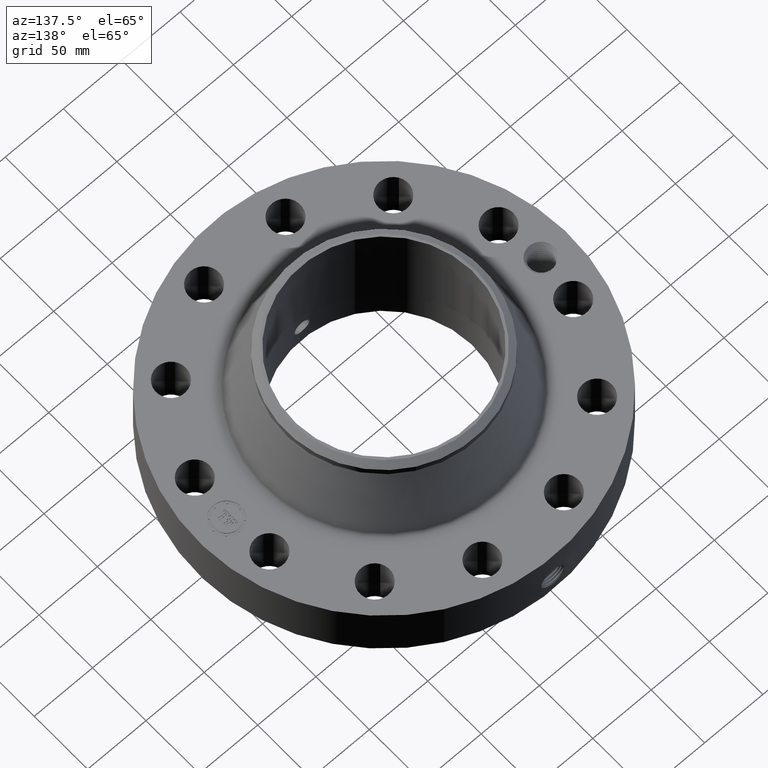
[diagram: clean part render]
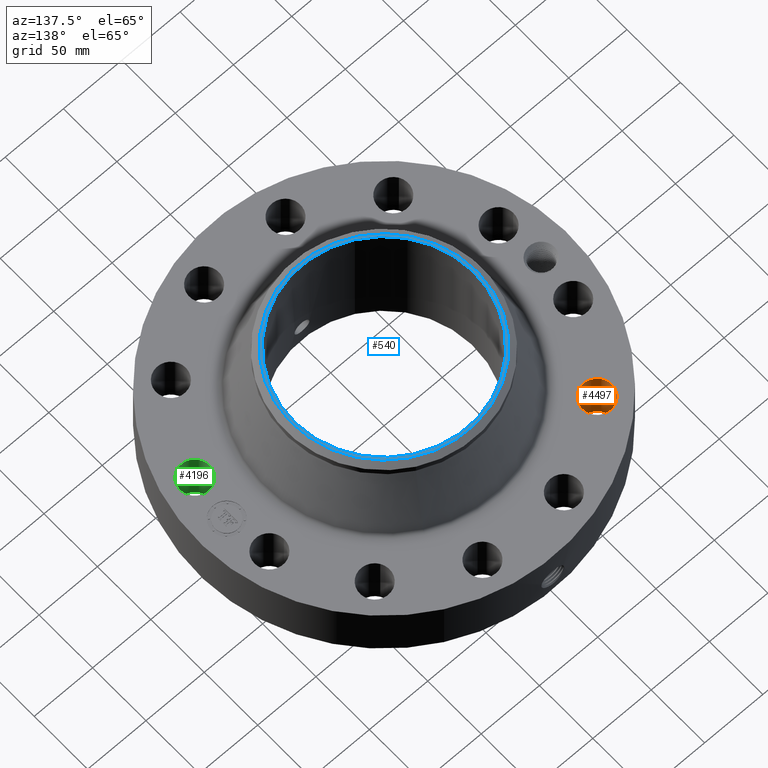
[diagram: same view with three faces highlighted in distinct colors, each labeled with its STEP entity id]
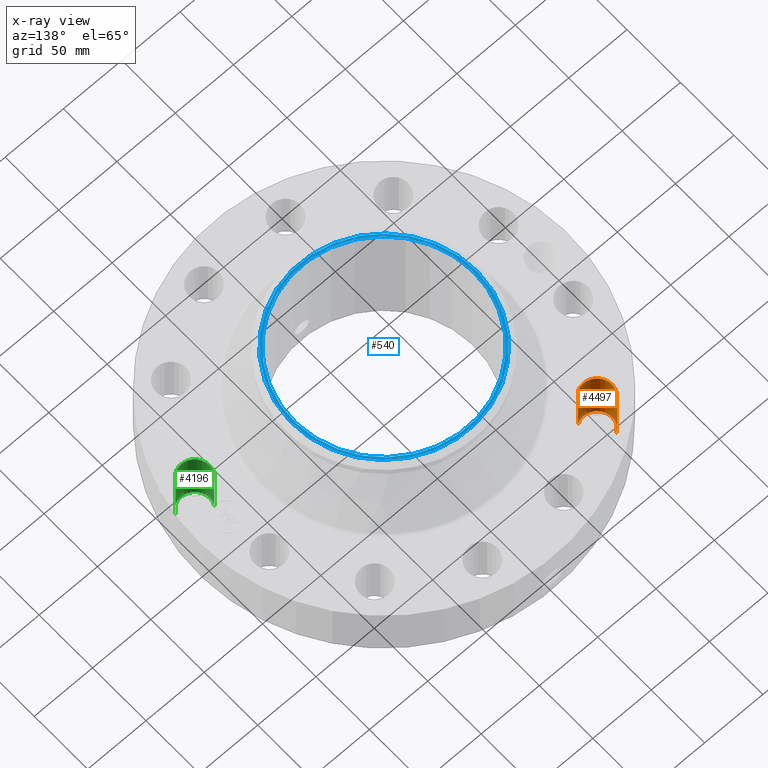
[diagram: x-ray of the same camera — body ghosted, the three highlighted faces saturated]
A machine part, auxiliary view with three faces highlighted in distinct colors.
The next image is the same camera in x-ray (body ghosted, the three faces saturated) — at least one of them is partly hidden behind the body in this view.
Their STEP definitions:

[orange] entity #4497 — the highlighted cylindrical surface (edge-blend (fillet) strip) has radius 12.7 mm, axis along (0, 0, -1).
#3093=AXIS2_PLACEMENT_3D('Circle Axis2P3D',#3091,#3092,$) ;
#4470=AXIS2_PLACEMENT_3D('Cylinder Axis2P3D',#4467,#4468,#4469) ;
#4481=AXIS2_PLACEMENT_3D('Circle Axis2P3D',#4479,#4480,$) ;
#3086=CARTESIAN_POINT('Vertex',(-4.01488501972,4.18172999642,1.93200000001)) ;
#3088=CARTESIAN_POINT('Vertex',(-3.49458899651,3.32774401981,1.93200000001)) ;
#3091=CARTESIAN_POINT('Axis2P3D Location',(-3.75473700812,3.75473700812,1.93200000001)) ;
#4467=CARTESIAN_POINT('Axis2P3D Location',(-3.75473700812,3.75473700812,1.92806299213)) ;
#4472=CARTESIAN_POINT('Line Origine',(-3.49458899651,3.32774401981,0.966000000004)) ;
#4476=CARTESIAN_POINT('Vertex',(-3.49458899651,3.32774401981,0.)) ;
#4479=CARTESIAN_POINT('Axis2P3D Location',(-3.75473700812,3.75473700812,0.)) ;
#4483=CARTESIAN_POINT('Vertex',(-4.01488501972,4.18172999642,0.)) ;
#4486=CARTESIAN_POINT('Line Origine',(-4.01488501972,4.18172999642,0.966000000004)) ;
#3092=DIRECTION('Axis2P3D Direction',(0.,0.,-0.0393700787402)) ;
#4468=DIRECTION('Axis2P3D Direction',(0.,0.,-0.0393700787402)) ;
#4469=DIRECTION('Axis2P3D XDirection',(-0.0204840954021,0.0336214951417,0.)) ;
#4473=DIRECTION('Vector Direction',(0.,0.,-0.0393700787402)) ;
#4480=DIRECTION('Axis2P3D Direction',(0.,0.,-0.0393700787402)) ;
#4487=DIRECTION('Vector Direction',(0.,0.,-0.0393700787402)) ;
#4474=VECTOR('Line Direction',#4473,0.0393700787402) ;
#4488=VECTOR('Line Direction',#4487,0.0393700787402) ;
#4492=ORIENTED_EDGE('',*,*,#4478,.F.) ;
#4493=ORIENTED_EDGE('',*,*,#4485,.T.) ;
#4494=ORIENTED_EDGE('',*,*,#4490,.T.) ;
#4495=ORIENTED_EDGE('',*,*,#3095,.F.) ;
#4497=ADVANCED_FACE('PartBody',(#4496),#4471,.F.) ;
#3094=CIRCLE('generated circle',#3093,0.500000000002) ;
#4482=CIRCLE('generated circle',#4481,0.500000000002) ;
#4471=CYLINDRICAL_SURFACE('generated cylinder',#4470,0.500000000002) ;
#3095=EDGE_CURVE('',#3089,#3087,#3094,.T.) ;
#4478=EDGE_CURVE('',#4477,#3089,#4475,.F.) ;
#4485=EDGE_CURVE('',#4477,#4484,#4482,.T.) ;
#4490=EDGE_CURVE('',#4484,#3087,#4489,.F.) ;
#4491=EDGE_LOOP('',(#4492,#4493,#4494,#4495)) ;
#4496=FACE_OUTER_BOUND('',#4491,.T.) ;
#4475=LINE('Line',#4472,#4474) ;
#4489=LINE('Line',#4486,#4488) ;
#3087=VERTEX_POINT('',#3086) ;
#3089=VERTEX_POINT('',#3088) ;
#4477=VERTEX_POINT('',#4476) ;
#4484=VERTEX_POINT('',#4483) ;

[blue] entity #540 — the highlighted planar face has unit normal (0, 0, -1).
#236=AXIS2_PLACEMENT_3D('Circle Axis2P3D',#234,#235,$) ;
#511=AXIS2_PLACEMENT_3D('Plane Axis2P3D',#508,#509,#510) ;
#515=AXIS2_PLACEMENT_3D('Circle Axis2P3D',#513,#514,$) ;
#524=AXIS2_PLACEMENT_3D('Circle Axis2P3D',#522,#523,$) ;
#533=AXIS2_PLACEMENT_3D('Circle Axis2P3D',#531,#532,$) ;
#234=CARTESIAN_POINT('Axis2P3D Location',(0.,0.,4.37200000002)) ;
#238=CARTESIAN_POINT('Vertex',(1.45385794582,2.66126911894,4.37200000002)) ;
#240=CARTESIAN_POINT('Vertex',(-1.45385794582,-2.66126911894,4.37200000002)) ;
#508=CARTESIAN_POINT('Axis2P3D Location',(0.,3.31500000001,4.37200000002)) ;
#513=CARTESIAN_POINT('Axis2P3D Location',(0.,0.,4.37200000002)) ;
#517=CARTESIAN_POINT('Vertex',(1.49160798823,-2.73037010807,4.37200000002)) ;
#519=CARTESIAN_POINT('Vertex',(-1.49160798823,2.73037010807,4.37200000002)) ;
#522=CARTESIAN_POINT('Axis2P3D Location',(0.,0.,4.37200000002)) ;
#531=CARTESIAN_POINT('Axis2P3D Location',(0.,0.,4.37200000002)) ;
#235=DIRECTION('Axis2P3D Direction',(0.,0.,-0.0393700787402)) ;
#509=DIRECTION('Axis2P3D Direction',(0.,0.,-0.0393700787402)) ;
#510=DIRECTION('Axis2P3D XDirection',(0.0393700787402,0.,0.)) ;
#514=DIRECTION('Axis2P3D Direction',(0.,0.,-0.0393700787402)) ;
#523=DIRECTION('Axis2P3D Direction',(0.,0.,-0.0393700787402)) ;
#532=DIRECTION('Axis2P3D Direction',(0.,0.,-0.0393700787402)) ;
#528=ORIENTED_EDGE('',*,*,#521,.T.) ;
#529=ORIENTED_EDGE('',*,*,#526,.T.) ;
#537=ORIENTED_EDGE('',*,*,#535,.T.) ;
#538=ORIENTED_EDGE('',*,*,#242,.T.) ;
#539=FACE_BOUND('',#536,.T.) ;
#540=ADVANCED_FACE('PartBody',(#530,#539),#512,.F.) ;
#237=CIRCLE('generated circle',#236,3.03250000001) ;
#516=CIRCLE('generated circle',#515,3.11124015749) ;
#525=CIRCLE('generated circle',#524,3.11124015749) ;
#534=CIRCLE('generated circle',#533,3.03250000001) ;
#242=EDGE_CURVE('',#239,#241,#237,.T.) ;
#521=EDGE_CURVE('',#518,#520,#516,.F.) ;
#526=EDGE_CURVE('',#520,#518,#525,.F.) ;
#535=EDGE_CURVE('',#241,#239,#534,.T.) ;
#527=EDGE_LOOP('',(#528,#529)) ;
#536=EDGE_LOOP('',(#537,#538)) ;
#530=FACE_OUTER_BOUND('',#527,.T.) ;
#512=PLANE('',#511) ;
#239=VERTEX_POINT('',#238) ;
#241=VERTEX_POINT('',#240) ;
#518=VERTEX_POINT('',#517) ;
#520=VERTEX_POINT('',#519) ;

[green] entity #4196 — the highlighted cylindrical surface (edge-blend (fillet) strip) has radius 12.7 mm, axis along (0, -0, -1).
#2963=AXIS2_PLACEMENT_3D('Circle Axis2P3D',#2961,#2962,$) ;
#4169=AXIS2_PLACEMENT_3D('Cylinder Axis2P3D',#4166,#4167,#4168) ;
#4180=AXIS2_PLACEMENT_3D('Circle Axis2P3D',#4178,#4179,$) ;
#2956=CARTESIAN_POINT('Vertex',(4.69027485667,-1.1346163602,1.93200000001)) ;
#2958=CARTESIAN_POINT('Vertex',(5.56785741856,-1.6140418988,1.93200000001)) ;
#2961=CARTESIAN_POINT('Axis2P3D Location',(5.12906613762,-1.3743291295,1.93200000001)) ;
#4166=CARTESIAN_POINT('Axis2P3D Location',(5.12906613762,-1.3743291295,1.92806299213)) ;
#4171=CARTESIAN_POINT('Line Origine',(5.56785741856,-1.6140418988,0.966000000004)) ;
#4175=CARTESIAN_POINT('Vertex',(5.56785741856,-1.6140418988,0.)) ;
#4178=CARTESIAN_POINT('Axis2P3D Location',(5.12906613762,-1.3743291295,0.)) ;
#4182=CARTESIAN_POINT('Vertex',(4.69027485667,-1.1346163602,0.)) ;
#4185=CARTESIAN_POINT('Line Origine',(4.69027485667,-1.1346163602,0.966000000004)) ;
#2962=DIRECTION('Axis2P3D Direction',(0.,0.,-0.0393700787402)) ;
#4167=DIRECTION('Axis2P3D Direction',(0.,-0.,-0.0393700787402)) ;
#4168=DIRECTION('Axis2P3D XDirection',(-0.0345504945626,0.0188750212049,0.)) ;
#4172=DIRECTION('Vector Direction',(0.,0.,-0.0393700787402)) ;
#4179=DIRECTION('Axis2P3D Direction',(0.,-0.,-0.0393700787402)) ;
#4186=DIRECTION('Vector Direction',(0.,0.,-0.0393700787402)) ;
#4173=VECTOR('Line Direction',#4172,0.0393700787402) ;
#4187=VECTOR('Line Direction',#4186,0.0393700787402) ;
#4191=ORIENTED_EDGE('',*,*,#4177,.F.) ;
#4192=ORIENTED_EDGE('',*,*,#4184,.T.) ;
#4193=ORIENTED_EDGE('',*,*,#4189,.T.) ;
#4194=ORIENTED_EDGE('',*,*,#2965,.F.) ;
#4196=ADVANCED_FACE('PartBody',(#4195),#4170,.F.) ;
#2964=CIRCLE('generated circle',#2963,0.500000000002) ;
#4181=CIRCLE('generated circle',#4180,0.500000000002) ;
#4170=CYLINDRICAL_SURFACE('generated cylinder',#4169,0.500000000002) ;
#2965=EDGE_CURVE('',#2959,#2957,#2964,.T.) ;
#4177=EDGE_CURVE('',#4176,#2959,#4174,.F.) ;
#4184=EDGE_CURVE('',#4176,#4183,#4181,.T.) ;
#4189=EDGE_CURVE('',#4183,#2957,#4188,.F.) ;
#4190=EDGE_LOOP('',(#4191,#4192,#4193,#4194)) ;
#4195=FACE_OUTER_BOUND('',#4190,.T.) ;
#4174=LINE('Line',#4171,#4173) ;
#4188=LINE('Line',#4185,#4187) ;
#2957=VERTEX_POINT('',#2956) ;
#2959=VERTEX_POINT('',#2958) ;
#4176=VERTEX_POINT('',#4175) ;
#4183=VERTEX_POINT('',#4182) ;